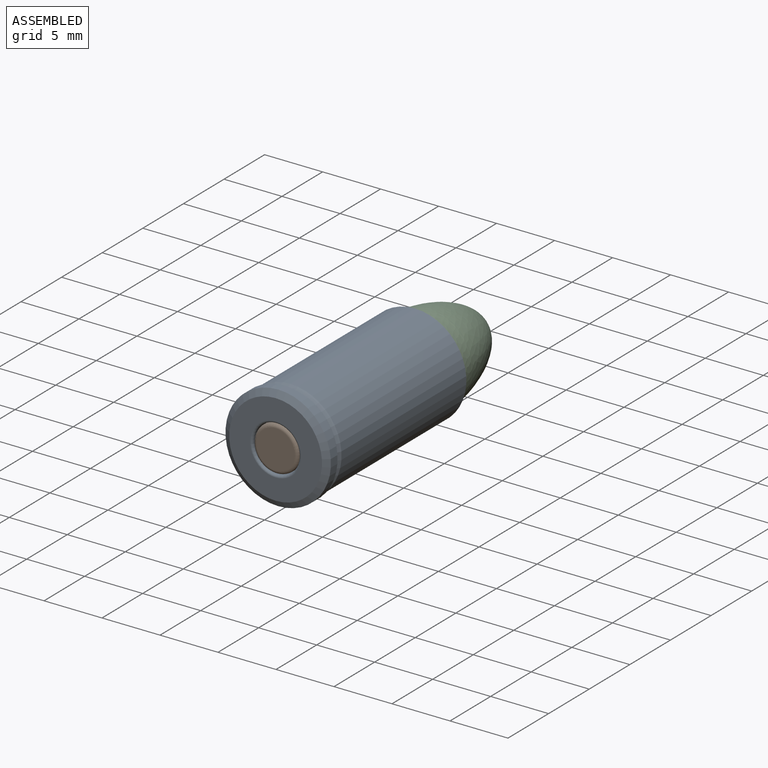
[diagram: assembled view]
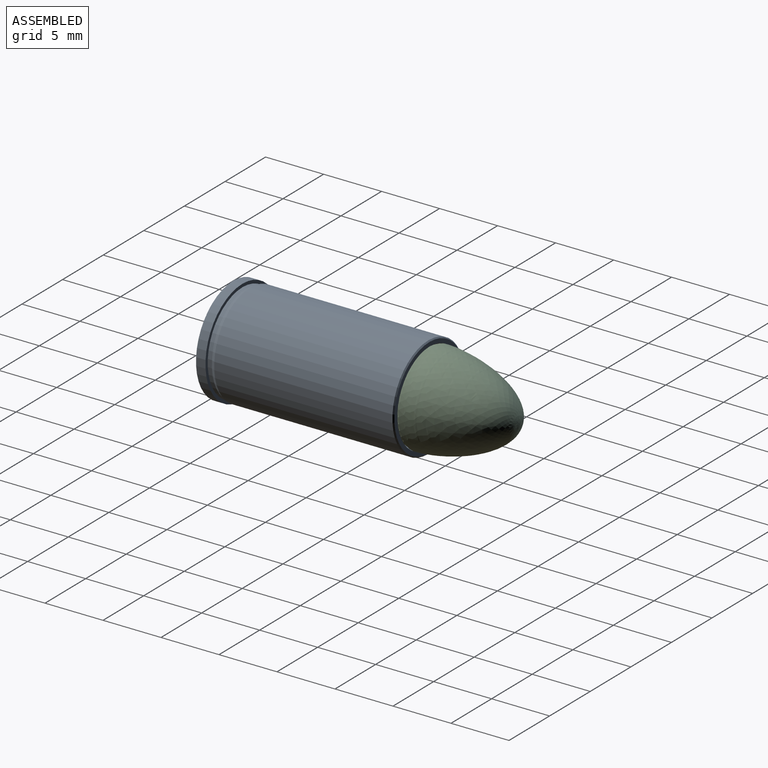
[diagram: assembled view, second angle]
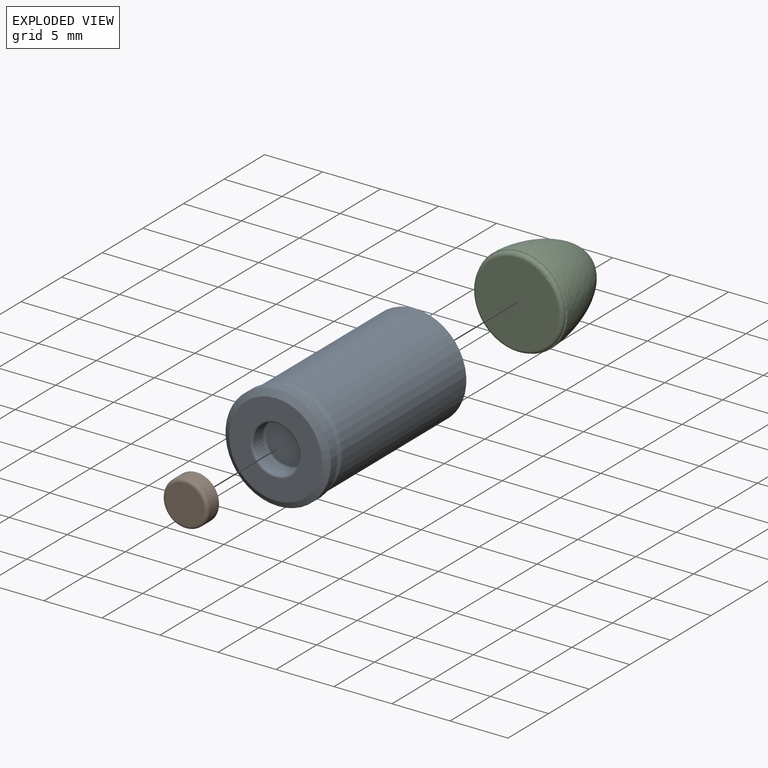
[diagram: exploded view]
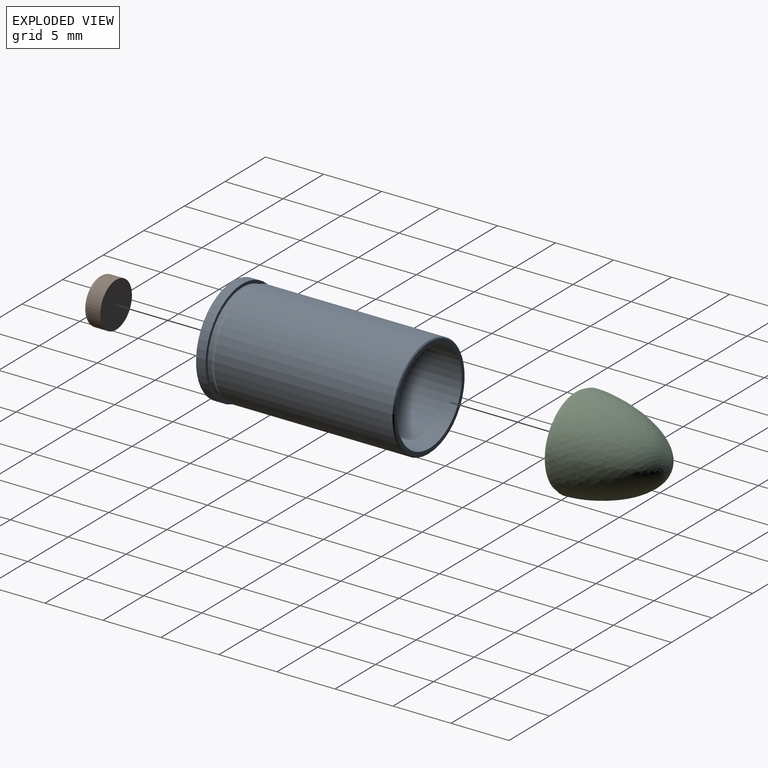
[diagram: exploded view, second angle]
ASSEMBLY  parts=3 mates=2
PART A: 16 faces, bbox 9.1x17.3x9.1 mm
  f0: plane 3.94x3.94mm, normal (0,1,0), area 12.2mm2, adj f15
  f1: cylinder r=3.97mm len=12.65mm, axis (0,-1,0), area 315.5mm2, adj f2,f15
  f2: plane 8.65x8.65mm, normal (0,1,0), area 9.3mm2, adj f1,f14
  f3: cylinder r=4.42mm len=15.37mm, axis (0,-1,0), area 427.3mm2, adj f4,f14
  f4: cone r=4.28mm half-angle=26deg, axis (0,1,0), area 9.3mm2, adj f3,f5
  f5: cylinder r=4.28mm len=8.55mm, axis (0,-1,0), area 9.5mm2, adj f4,f6
  f6: plane 9.09x9.09mm, normal (0,1,0), area 7.5mm2, adj f5,f7
  f7: cylinder r=4.55mm len=9.09mm, axis (0,-1,0), area 23.3mm2, adj f6,f8
  f8: cone r=4.55mm half-angle=59.3deg, axis (0,1,0), area 17mm2, adj f7,f9
  f9: plane 8x8mm, normal (0,-1,0), area 35.1mm2, adj f8,f12
  f10: cylinder r=2mm len=4mm, axis (0,-1,0), area 13.3mm2, adj f12,f13
  f11: plane 3.6x3.6mm, normal (0,-1,0), area 10.2mm2, adj f13
  f12: torus R=2.2mm, axis (0,-1,0), area 4.1mm2, adj f9,f10
  f13: torus R=1.8mm, axis (0,1,0), area 3.8mm2, adj f10,f11
  f14: cone r=4.42mm half-angle=45deg, axis (0,-1,0), area 3.9mm2, adj f2,f3
  f15: torus R=1.97mm, axis (0,1,0), area 64mm2, adj f0,f1
PART B: 4 faces, bbox 4.2x1.5x4.2 mm
  f0: cylinder r=1.95mm len=3.9mm, axis (0,1,0), area 14.1mm2, adj f2,f3
  f1: plane 3.3x3.3mm, normal (0,-1,0), area 8.6mm2, adj f3
  f2: plane 3.9x3.9mm, normal (0,1,0), area 11.9mm2, adj f0
  f3: torus R=1.65mm, axis (0,-1,0), area 5.5mm2, adj f0,f1
PART C: 5 faces, bbox 8.6x8.1x8.6 mm
  f0: plane 7.14x7.14mm, normal (0,-1,0), area 40mm2, adj f3
  f1: cylinder r=3.87mm len=7.74mm, axis (0,-1,0), area 2.4mm2, adj f3,f4
  f2: revolved ~7.94x7.94mm, area 157.1mm2, adj f4
  f3: torus R=3.57mm, axis (0,1,0), area 11.1mm2, adj f0,f1
  f4: torus R=3.87mm, axis (0,-1,0), area 3.9mm2, adj f1,f2
PLACE A at identity
PLACE B t=(0,-12.17,0)mm
PLACE C t=(0,3.64,0)mm
MATE fastened B.f0 <-> A.f1  axis (0,1,0) through (0,-12.17,0)mm
MATE fastened C.f1 <-> A.f1  axis (0,-1,0) through (0,3.24,0)mm
